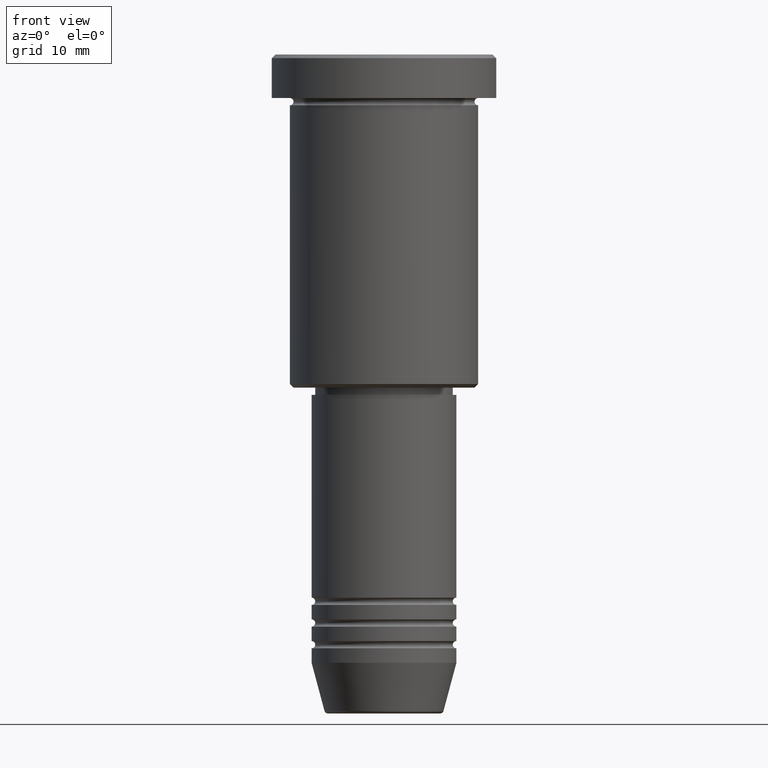
[diagram: clean part render]
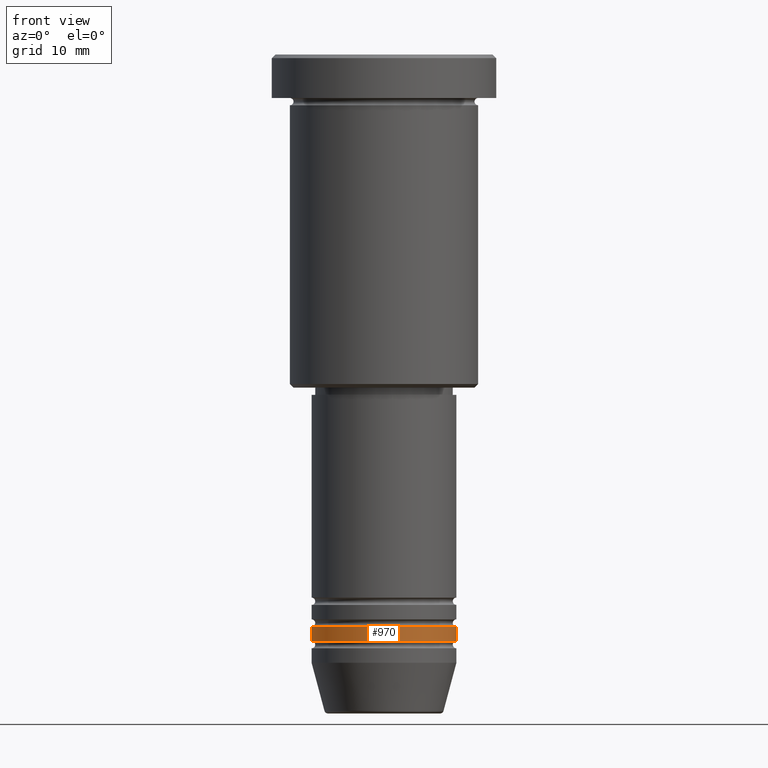
[diagram: same view with one face highlighted and labeled with its STEP entity id]
A machine part, front view. The second image highlights one B-rep face of the part: STEP entity #970.
In plain terms, the highlighted cylindrical surface (partial cylindrical patch) has radius 10 mm, axis along (-0, -0, 1).
Its self-contained STEP definition (entity closure, byte-faithful):
#6 = CARTESIAN_POINT ( 'NONE',  ( 10.00000000000000000, 0.000000000000000000, -80.99999999999997158 ) ) ;
#25 = EDGE_CURVE ( 'NONE', #904, #1171, #653, .T. ) ;
#27 = DIRECTION ( 'NONE',  ( -0.000000000000000000, -0.000000000000000000, 1.000000000000000000 ) ) ;
#65 = VERTEX_POINT ( 'NONE', #834 ) ;
#67 = DIRECTION ( 'NONE',  ( -0.000000000000000000, -0.000000000000000000, 1.000000000000000000 ) ) ;
#84 = ORIENTED_EDGE ( 'NONE', *, *, #620, .T. ) ;
#90 = DIRECTION ( 'NONE',  ( 1.000000000000000000, 0.000000000000000000, 0.000000000000000000 ) ) ;
#116 = DIRECTION ( 'NONE',  ( -0.000000000000000000, -0.000000000000000000, 1.000000000000000000 ) ) ;
#120 = AXIS2_PLACEMENT_3D ( 'NONE', #173, #545, #90 ) ;
#173 = CARTESIAN_POINT ( 'NONE',  ( 0.000000000000000000, 0.000000000000000000, -78.99999999999997158 ) ) ;
#189 = CARTESIAN_POINT ( 'NONE',  ( 0.000000000000000000, 0.000000000000000000, 0.000000000000000000 ) ) ;
#196 = FACE_OUTER_BOUND ( 'NONE', #744, .T. ) ;
#285 = CARTESIAN_POINT ( 'NONE',  ( 0.000000000000000000, 0.000000000000000000, -80.99999999999997158 ) ) ;
#296 = AXIS2_PLACEMENT_3D ( 'NONE', #189, #725, #454 ) ;
#304 = CARTESIAN_POINT ( 'NONE',  ( -10.00000000000000000, 1.224646799147353256E-15, -80.99999999999997158 ) ) ;
#343 = VERTEX_POINT ( 'NONE', #6 ) ;
#357 = EDGE_CURVE ( 'NONE', #904, #343, #1063, .T. ) ;
#454 = DIRECTION ( 'NONE',  ( 1.000000000000000000, 0.000000000000000000, 0.000000000000000000 ) ) ;
#482 = CARTESIAN_POINT ( 'NONE',  ( 10.00000000000000000, 0.000000000000000000, 0.000000000000000000 ) ) ;
#545 = DIRECTION ( 'NONE',  ( -0.000000000000000000, -0.000000000000000000, 1.000000000000000000 ) ) ;
#596 = CARTESIAN_POINT ( 'NONE',  ( -10.00000000000000000, 1.224646799147353256E-15, -78.99999999999997158 ) ) ;
#620 = EDGE_CURVE ( 'NONE', #343, #65, #672, .T. ) ;
#653 = LINE ( 'NONE', #1015, #887 ) ;
#672 = LINE ( 'NONE', #482, #992 ) ;
#700 = AXIS2_PLACEMENT_3D ( 'NONE', #285, #67, #788 ) ;
#725 = DIRECTION ( 'NONE',  ( -0.000000000000000000, -0.000000000000000000, 1.000000000000000000 ) ) ;
#744 = EDGE_LOOP ( 'NONE', ( #974, #875, #84, #779 ) ) ;
#779 = ORIENTED_EDGE ( 'NONE', *, *, #954, .F. ) ;
#788 = DIRECTION ( 'NONE',  ( 1.000000000000000000, 0.000000000000000000, 0.000000000000000000 ) ) ;
#834 = CARTESIAN_POINT ( 'NONE',  ( 10.00000000000000000, 0.000000000000000000, -78.99999999999997158 ) ) ;
#875 = ORIENTED_EDGE ( 'NONE', *, *, #357, .T. ) ;
#887 = VECTOR ( 'NONE', #116, 1000.000000000000000 ) ;
#904 = VERTEX_POINT ( 'NONE', #304 ) ;
#954 = EDGE_CURVE ( 'NONE', #1171, #65, #1098, .T. ) ;
#970 = ADVANCED_FACE ( 'NONE', ( #196 ), #995, .T. ) ;
#974 = ORIENTED_EDGE ( 'NONE', *, *, #25, .F. ) ;
#992 = VECTOR ( 'NONE', #27, 1000.000000000000000 ) ;
#995 = CYLINDRICAL_SURFACE ( 'NONE', #296, 10.00000000000000000 ) ;
#1015 = CARTESIAN_POINT ( 'NONE',  ( -10.00000000000000000, 1.224646799147353256E-15, 0.000000000000000000 ) ) ;
#1063 = CIRCLE ( 'NONE', #700, 10.00000000000000000 ) ;
#1098 = CIRCLE ( 'NONE', #120, 10.00000000000000000 ) ;
#1171 = VERTEX_POINT ( 'NONE', #596 ) ;